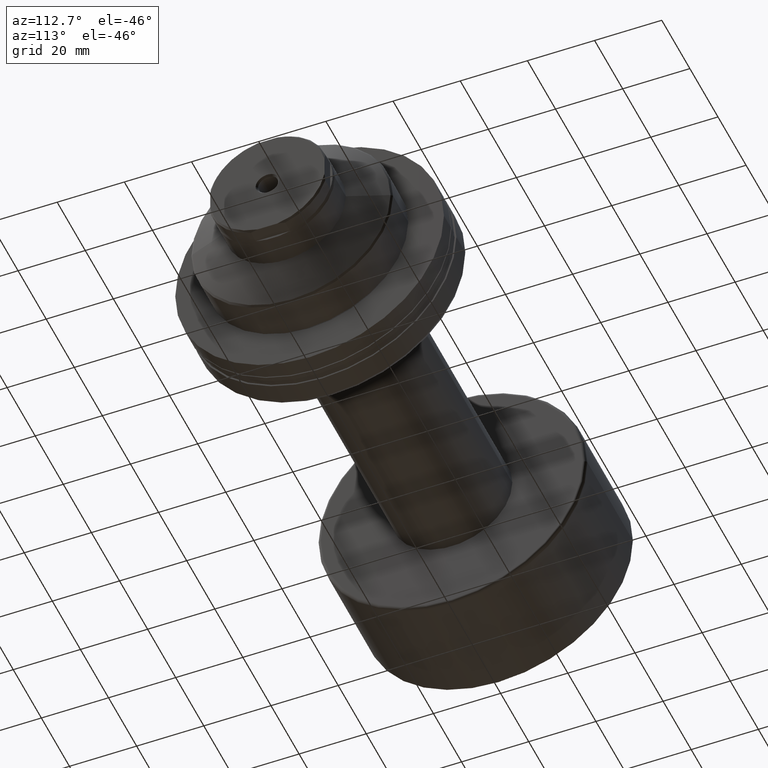
[diagram: clean part render]
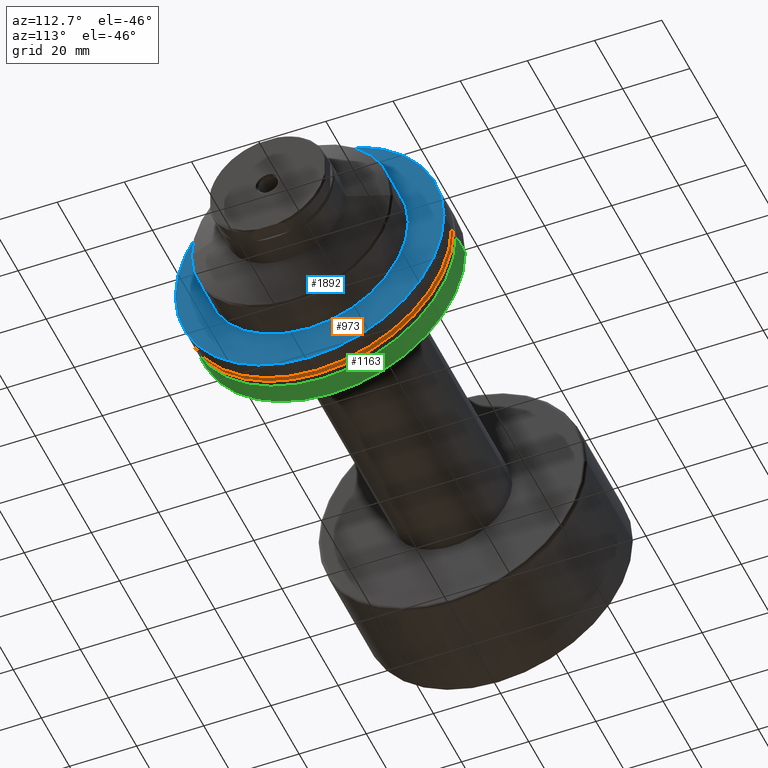
[diagram: same view with three faces highlighted in distinct colors, each labeled with its STEP entity id]
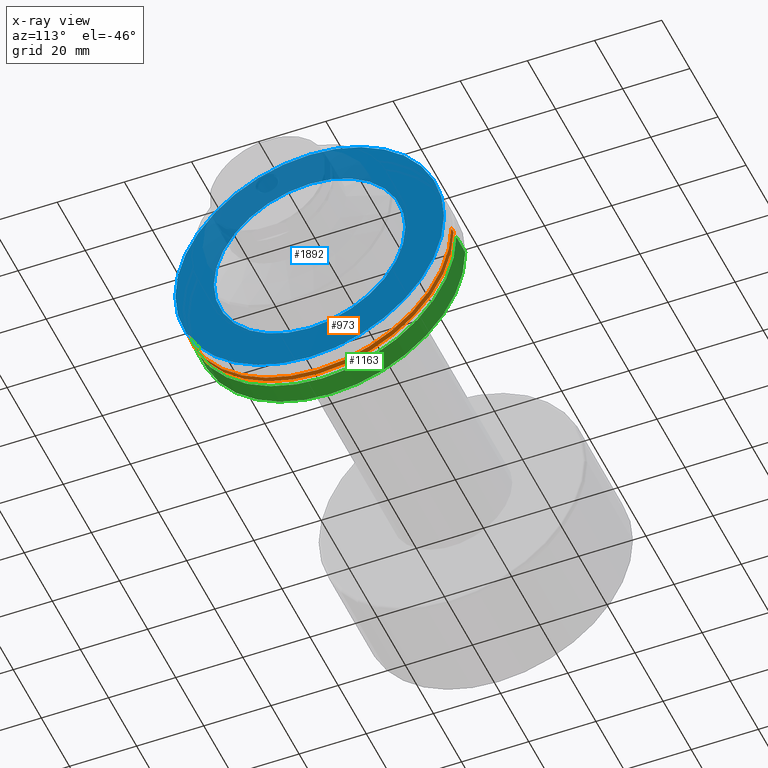
[diagram: x-ray of the same camera — body ghosted, the three highlighted faces saturated]
A machine part, auxiliary view with three faces highlighted in distinct colors.
The next image is the same camera in x-ray (body ghosted, the three faces saturated) — at least one of them is partly hidden behind the body in this view.
Their STEP definitions:

[orange] entity #973 — the highlighted cylindrical surface (partial cylindrical patch) has radius 40 mm, axis along (1, 0, 0).
#55 = DIRECTION ( 'NONE',  ( 1.000000000000000000, 3.738146982434194072E-16, -0.000000000000000000 ) ) ;
#79 = CARTESIAN_POINT ( 'NONE',  ( -30.28002276692732408, 0.000000000000000000, 0.000000000000000000 ) ) ;
#118 = AXIS2_PLACEMENT_3D ( 'NONE', #1972, #1622, #173 ) ;
#173 = DIRECTION ( 'NONE',  ( -3.469446951953613696E-16, 1.000000000000000000, 0.000000000000000000 ) ) ;
#223 = AXIS2_PLACEMENT_3D ( 'NONE', #79, #55, #1681 ) ;
#252 = EDGE_LOOP ( 'NONE', ( #1084, #549, #2276, #1463 ) ) ;
#402 = EDGE_CURVE ( 'NONE', #688, #1861, #1934, .T. ) ;
#436 = CYLINDRICAL_SURFACE ( 'NONE', #223, 40.00000000000000711 ) ;
#450 = CIRCLE ( 'NONE', #540, 40.00000000000000711 ) ;
#540 = AXIS2_PLACEMENT_3D ( 'NONE', #1813, #2180, #939 ) ;
#549 = ORIENTED_EDGE ( 'NONE', *, *, #1818, .T. ) ;
#622 = CARTESIAN_POINT ( 'NONE',  ( -29.30000000000002203, 40.00000000000000711, 0.000000000000000000 ) ) ;
#688 = VERTEX_POINT ( 'NONE', #1391 ) ;
#693 = CIRCLE ( 'NONE', #118, 40.00000000000000711 ) ;
#861 = DIRECTION ( 'NONE',  ( 1.000000000000000000, 3.738146982434194072E-16, -0.000000000000000000 ) ) ;
#939 = DIRECTION ( 'NONE',  ( -3.469446951953613696E-16, 1.000000000000000000, 0.000000000000000000 ) ) ;
#973 = ADVANCED_FACE ( 'NONE', ( #1300 ), #436, .T. ) ;
#1028 = CARTESIAN_POINT ( 'NONE',  ( -30.28002276692733830, 40.00000000000000711, 0.000000000000000000 ) ) ;
#1058 = VERTEX_POINT ( 'NONE', #622 ) ;
#1084 = ORIENTED_EDGE ( 'NONE', *, *, #402, .F. ) ;
#1194 = VECTOR ( 'NONE', #861, 1000.000000000000000 ) ;
#1300 = FACE_OUTER_BOUND ( 'NONE', #252, .T. ) ;
#1391 = CARTESIAN_POINT ( 'NONE',  ( -30.80000000000000071, -40.00000000000000711, 4.898587196589413815E-15 ) ) ;
#1463 = ORIENTED_EDGE ( 'NONE', *, *, #1640, .F. ) ;
#1558 = LINE ( 'NONE', #1028, #1194 ) ;
#1612 = DIRECTION ( 'NONE',  ( 1.000000000000000000, 3.738146982434194072E-16, -0.000000000000000000 ) ) ;
#1622 = DIRECTION ( 'NONE',  ( 1.000000000000000000, 3.738146982434194072E-16, -0.000000000000000000 ) ) ;
#1640 = EDGE_CURVE ( 'NONE', #1861, #1058, #450, .T. ) ;
#1681 = DIRECTION ( 'NONE',  ( -3.469446951953613696E-16, 1.000000000000000000, 0.000000000000000000 ) ) ;
#1726 = EDGE_CURVE ( 'NONE', #2269, #1058, #1558, .T. ) ;
#1755 = CARTESIAN_POINT ( 'NONE',  ( -30.80000000000002913, 40.00000000000000711, 0.000000000000000000 ) ) ;
#1813 = CARTESIAN_POINT ( 'NONE',  ( -29.30000000000000782, 3.663469148906156498E-16, 0.000000000000000000 ) ) ;
#1818 = EDGE_CURVE ( 'NONE', #688, #2269, #693, .T. ) ;
#1861 = VERTEX_POINT ( 'NONE', #2155 ) ;
#1934 = LINE ( 'NONE', #2154, #2192 ) ;
#1972 = CARTESIAN_POINT ( 'NONE',  ( -30.80000000000001492, -1.943751324745165179E-16, 0.000000000000000000 ) ) ;
#2154 = CARTESIAN_POINT ( 'NONE',  ( -30.28002276692730987, -40.00000000000000711, 4.898587196589413815E-15 ) ) ;
#2155 = CARTESIAN_POINT ( 'NONE',  ( -29.29999999999999361, -40.00000000000000711, 4.898587196589413815E-15 ) ) ;
#2180 = DIRECTION ( 'NONE',  ( 1.000000000000000000, 3.738146982434194072E-16, -0.000000000000000000 ) ) ;
#2192 = VECTOR ( 'NONE', #1612, 1000.000000000000000 ) ;
#2269 = VERTEX_POINT ( 'NONE', #1755 ) ;
#2276 = ORIENTED_EDGE ( 'NONE', *, *, #1726, .T. ) ;

[blue] entity #1892 — the highlighted planar face has unit normal (-1, -0, 0).
#22 = DIRECTION ( 'NONE',  ( 1.000000000000000000, 3.738146982434194072E-16, -0.000000000000000000 ) ) ;
#124 = VERTEX_POINT ( 'NONE', #1776 ) ;
#201 = FACE_OUTER_BOUND ( 'NONE', #1954, .T. ) ;
#256 = VERTEX_POINT ( 'NONE', #1486 ) ;
#271 = CARTESIAN_POINT ( 'NONE',  ( -23.99999999999999289, -28.50000000000069278, 3.582091887506051204E-15 ) ) ;
#490 = EDGE_CURVE ( 'NONE', #987, #124, #573, .T. ) ;
#500 = AXIS2_PLACEMENT_3D ( 'NONE', #2136, #2298, #1254 ) ;
#573 = CIRCLE ( 'NONE', #1042, 40.00000000000000711 ) ;
#606 = CIRCLE ( 'NONE', #2229, 40.00000000000000711 ) ;
#617 = CIRCLE ( 'NONE', #1830, 28.50000000000069633 ) ;
#740 = DIRECTION ( 'NONE',  ( -3.652049423108978094E-16, 1.000000000000000000, 0.000000000000000000 ) ) ;
#759 = EDGE_CURVE ( 'NONE', #124, #987, #606, .T. ) ;
#894 = ORIENTED_EDGE ( 'NONE', *, *, #759, .T. ) ;
#897 = EDGE_CURVE ( 'NONE', #1038, #256, #1444, .T. ) ;
#934 = DIRECTION ( 'NONE',  ( 1.000000000000000000, 3.738146982434194072E-16, -0.000000000000000000 ) ) ;
#987 = VERTEX_POINT ( 'NONE', #1666 ) ;
#1038 = VERTEX_POINT ( 'NONE', #271 ) ;
#1042 = AXIS2_PLACEMENT_3D ( 'NONE', #2057, #934, #1810 ) ;
#1045 = AXIS2_PLACEMENT_3D ( 'NONE', #2001, #22, #1800 ) ;
#1133 = ORIENTED_EDGE ( 'NONE', *, *, #490, .T. ) ;
#1237 = PLANE ( 'NONE',  #500 ) ;
#1254 = DIRECTION ( 'NONE',  ( 3.738146982434194072E-16, -1.000000000000000000, 0.000000000000000000 ) ) ;
#1270 = CARTESIAN_POINT ( 'NONE',  ( -24.00000000000000711, 2.347564815580738247E-15, 0.000000000000000000 ) ) ;
#1283 = ORIENTED_EDGE ( 'NONE', *, *, #897, .F. ) ;
#1379 = ORIENTED_EDGE ( 'NONE', *, *, #2299, .F. ) ;
#1439 = DIRECTION ( 'NONE',  ( 1.000000000000000000, 3.738146982434194072E-16, -0.000000000000000000 ) ) ;
#1444 = CIRCLE ( 'NONE', #1045, 28.50000000000069633 ) ;
#1486 = CARTESIAN_POINT ( 'NONE',  ( -24.00000000000001421, 28.50000000000069988, 0.000000000000000000 ) ) ;
#1582 = CARTESIAN_POINT ( 'NONE',  ( -24.00000000000000355, 2.347564815580739825E-15, 0.000000000000000000 ) ) ;
#1613 = FACE_BOUND ( 'NONE', #1646, .T. ) ;
#1646 = EDGE_LOOP ( 'NONE', ( #1379, #1283 ) ) ;
#1666 = CARTESIAN_POINT ( 'NONE',  ( -24.00000000000002132, 40.00000000000000711, 0.000000000000000000 ) ) ;
#1776 = CARTESIAN_POINT ( 'NONE',  ( -23.99999999999999289, -40.00000000000000711, 4.898587196589413815E-15 ) ) ;
#1800 = DIRECTION ( 'NONE',  ( -3.652049423108978094E-16, 1.000000000000000000, 0.000000000000000000 ) ) ;
#1810 = DIRECTION ( 'NONE',  ( -3.469446951953613696E-16, 1.000000000000000000, 0.000000000000000000 ) ) ;
#1830 = AXIS2_PLACEMENT_3D ( 'NONE', #1582, #1959, #740 ) ;
#1892 = ADVANCED_FACE ( 'NONE', ( #1613, #201 ), #1237, .F. ) ;
#1954 = EDGE_LOOP ( 'NONE', ( #1133, #894 ) ) ;
#1957 = DIRECTION ( 'NONE',  ( -3.469446951953613696E-16, 1.000000000000000000, 0.000000000000000000 ) ) ;
#1959 = DIRECTION ( 'NONE',  ( 1.000000000000000000, 3.738146982434194072E-16, -0.000000000000000000 ) ) ;
#2001 = CARTESIAN_POINT ( 'NONE',  ( -24.00000000000000355, 2.347564815580739825E-15, 0.000000000000000000 ) ) ;
#2057 = CARTESIAN_POINT ( 'NONE',  ( -24.00000000000000711, 2.347564815580738247E-15, 0.000000000000000000 ) ) ;
#2136 = CARTESIAN_POINT ( 'NONE',  ( -23.99999999999998934, -40.00000000000000711, 0.000000000000000000 ) ) ;
#2229 = AXIS2_PLACEMENT_3D ( 'NONE', #1270, #1439, #1957 ) ;
#2298 = DIRECTION ( 'NONE',  ( -1.000000000000000000, -3.738146982434194072E-16, 0.000000000000000000 ) ) ;
#2299 = EDGE_CURVE ( 'NONE', #256, #1038, #617, .T. ) ;

[green] entity #1163 — the highlighted cylindrical surface (partial cylindrical patch) has radius 40 mm, axis along (1, 0, 0).
#14 = DIRECTION ( 'NONE',  ( 1.000000000000000000, 3.738146982434194072E-16, -0.000000000000000000 ) ) ;
#46 = CYLINDRICAL_SURFACE ( 'NONE', #1898, 40.00000000000000711 ) ;
#73 = CARTESIAN_POINT ( 'NONE',  ( -30.28002276692730987, -40.00000000000000711, 4.898587196589413815E-15 ) ) ;
#111 = AXIS2_PLACEMENT_3D ( 'NONE', #2102, #1536, #854 ) ;
#329 = DIRECTION ( 'NONE',  ( 1.000000000000000000, 3.738146982434194072E-16, -0.000000000000000000 ) ) ;
#344 = CIRCLE ( 'NONE', #1485, 40.00000000000000711 ) ;
#355 = EDGE_LOOP ( 'NONE', ( #706, #2306, #1964, #1015 ) ) ;
#395 = LINE ( 'NONE', #1806, #970 ) ;
#706 = ORIENTED_EDGE ( 'NONE', *, *, #1988, .F. ) ;
#809 = EDGE_CURVE ( 'NONE', #2082, #1387, #395, .T. ) ;
#854 = DIRECTION ( 'NONE',  ( -3.469446951953613696E-16, 1.000000000000000000, 0.000000000000000000 ) ) ;
#879 = CARTESIAN_POINT ( 'NONE',  ( -32.80878161770240808, 40.00000000000000711, 0.000000000000000000 ) ) ;
#948 = CARTESIAN_POINT ( 'NONE',  ( -39.20000000000020890, 40.00000000000000000, 0.000000000000000000 ) ) ;
#970 = VECTOR ( 'NONE', #14, 1000.000000000000000 ) ;
#1015 = ORIENTED_EDGE ( 'NONE', *, *, #1252, .F. ) ;
#1163 = ADVANCED_FACE ( 'NONE', ( #1649 ), #46, .T. ) ;
#1252 = EDGE_CURVE ( 'NONE', #1835, #1387, #2125, .T. ) ;
#1263 = CARTESIAN_POINT ( 'NONE',  ( -32.80878161770237966, -40.00000000000000711, 4.898587196589413815E-15 ) ) ;
#1292 = CARTESIAN_POINT ( 'NONE',  ( -39.20000000000018048, -40.00000000000001421, 4.898587196589413815E-15 ) ) ;
#1387 = VERTEX_POINT ( 'NONE', #879 ) ;
#1458 = LINE ( 'NONE', #73, #1946 ) ;
#1485 = AXIS2_PLACEMENT_3D ( 'NONE', #2189, #1855, #2023 ) ;
#1536 = DIRECTION ( 'NONE',  ( 1.000000000000000000, 3.738146982434194072E-16, -0.000000000000000000 ) ) ;
#1572 = EDGE_CURVE ( 'NONE', #2033, #2082, #344, .T. ) ;
#1649 = FACE_OUTER_BOUND ( 'NONE', #355, .T. ) ;
#1806 = CARTESIAN_POINT ( 'NONE',  ( -30.28002276692733830, 40.00000000000000711, 0.000000000000000000 ) ) ;
#1835 = VERTEX_POINT ( 'NONE', #1263 ) ;
#1855 = DIRECTION ( 'NONE',  ( 1.000000000000000000, 3.738146982434194072E-16, -0.000000000000000000 ) ) ;
#1898 = AXIS2_PLACEMENT_3D ( 'NONE', #2182, #329, #2263 ) ;
#1946 = VECTOR ( 'NONE', #2037, 1000.000000000000000 ) ;
#1964 = ORIENTED_EDGE ( 'NONE', *, *, #809, .T. ) ;
#1988 = EDGE_CURVE ( 'NONE', #2033, #1835, #1458, .T. ) ;
#2023 = DIRECTION ( 'NONE',  ( -3.469446951953613696E-16, 1.000000000000000000, 0.000000000000000000 ) ) ;
#2033 = VERTEX_POINT ( 'NONE', #1292 ) ;
#2037 = DIRECTION ( 'NONE',  ( 1.000000000000000000, 3.738146982434194072E-16, -0.000000000000000000 ) ) ;
#2082 = VERTEX_POINT ( 'NONE', #948 ) ;
#2102 = CARTESIAN_POINT ( 'NONE',  ( -32.80878161770239387, -9.452872267328581409E-16, 0.000000000000000000 ) ) ;
#2125 = CIRCLE ( 'NONE', #111, 40.00000000000000711 ) ;
#2182 = CARTESIAN_POINT ( 'NONE',  ( -30.28002276692732408, 0.000000000000000000, 0.000000000000000000 ) ) ;
#2189 = CARTESIAN_POINT ( 'NONE',  ( -39.20000000000019469, -3.334418597719306597E-15, 0.000000000000000000 ) ) ;
#2263 = DIRECTION ( 'NONE',  ( -3.469446951953613696E-16, 1.000000000000000000, 0.000000000000000000 ) ) ;
#2306 = ORIENTED_EDGE ( 'NONE', *, *, #1572, .T. ) ;